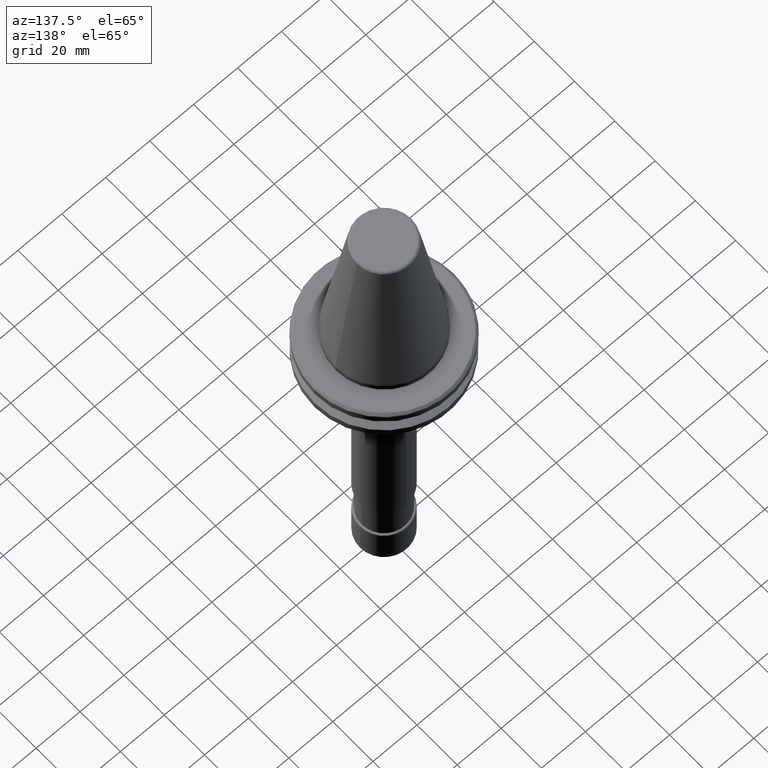
[diagram: clean part render]
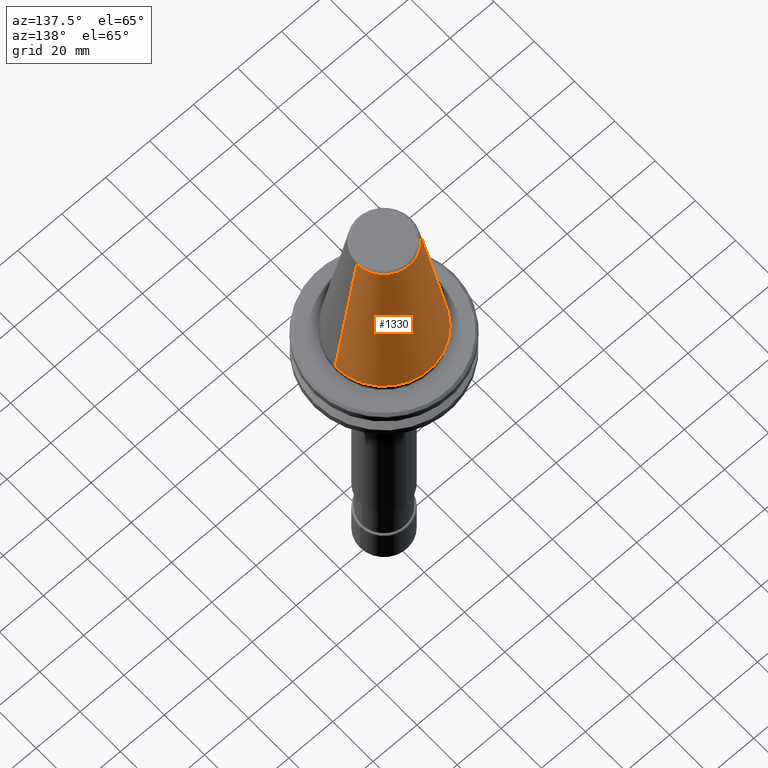
[diagram: same view with one face highlighted and labeled with its STEP entity id]
A machine part, auxiliary view. The second image highlights one B-rep face of the part: STEP entity #1330.
In plain terms, the highlighted conical surface has half-angle 8.297 deg.
Its self-contained STEP definition (entity closure, byte-faithful):
#3 = DIRECTION ( 'NONE',  ( 0.0000000000000000000, 0.0000000000000000000, 1.000000000000000000 ) ) ;
#174 = CARTESIAN_POINT ( 'NONE',  ( 0.0000000000000000000, 0.0000000000000000000, 67.54430822699997300 ) ) ;
#187 = CARTESIAN_POINT ( 'NONE',  ( 12.37469537600000200, 1.515463108264195400E-015, 67.54430822700000200 ) ) ;
#223 = DIRECTION ( 'NONE',  ( -0.0000000000000000000, -0.0000000000000000000, 1.000000000000000000 ) ) ;
#243 = CARTESIAN_POINT ( 'NONE',  ( -22.22499999999999400, 0.0000000000000000000, 0.0000000000000000000 ) ) ;
#471 = DIRECTION ( 'NONE',  ( 1.000000000000000000, 0.0000000000000000000, 0.0000000000000000000 ) ) ;
#587 = CONICAL_SURFACE ( 'NONE', #1605, 12.37469537600000200, 0.1448138465495948400 ) ;
#619 = AXIS2_PLACEMENT_3D ( 'NONE', #2927, #3, #471 ) ;
#620 = CARTESIAN_POINT ( 'NONE',  ( 12.37469537596690300, -3.807138672675623000E-009, 67.54430822700852800 ) ) ;
#807 = DIRECTION ( 'NONE',  ( -1.000000000000000000, 8.881784197001252300E-016, 2.242930009368895400E-015 ) ) ;
#976 = EDGE_CURVE ( 'NONE', #1320, #1703, #3320, .T. ) ;
#1198 = EDGE_CURVE ( 'NONE', #1606, #2431, #2304, .T. ) ;
#1320 = VERTEX_POINT ( 'NONE', #620 ) ;
#1328 = VECTOR ( 'NONE', #2164, 1000.000000000000100 ) ;
#1330 = ADVANCED_FACE ( 'NONE', ( #1883 ), #587, .T. ) ;
#1588 = CARTESIAN_POINT ( 'NONE',  ( 0.0000000000000000000, 0.0000000000000000000, 67.54430822700000200 ) ) ;
#1605 = AXIS2_PLACEMENT_3D ( 'NONE', #1588, #3047, #1620 ) ;
#1606 = VERTEX_POINT ( 'NONE', #2323 ) ;
#1620 = DIRECTION ( 'NONE',  ( -1.000000000000000000, 0.0000000000000000000, 0.0000000000000000000 ) ) ;
#1703 = VERTEX_POINT ( 'NONE', #3083 ) ;
#1756 = ORIENTED_EDGE ( 'NONE', *, *, #976, .T. ) ;
#1883 = FACE_OUTER_BOUND ( 'NONE', #2868, .T. ) ;
#1924 = CIRCLE ( 'NONE', #2517, 12.37469537600000200 ) ;
#1926 = ORIENTED_EDGE ( 'NONE', *, *, #1198, .F. ) ;
#2164 = DIRECTION ( 'NONE',  ( -0.1443082272694599900, 0.0000000000000000000, -0.9895327864918603800 ) ) ;
#2304 = LINE ( 'NONE', #3372, #1328 ) ;
#2323 = CARTESIAN_POINT ( 'NONE',  ( -12.37469537596881600, -1.111168798511305300E-009, 67.54430822699542600 ) ) ;
#2408 = EDGE_CURVE ( 'NONE', #1320, #1606, #1924, .T. ) ;
#2420 = DIRECTION ( 'NONE',  ( 0.1443082272694599900, 1.767266086161729800E-017, -0.9895327864918603800 ) ) ;
#2431 = VERTEX_POINT ( 'NONE', #243 ) ;
#2463 = VECTOR ( 'NONE', #2420, 1000.000000000000100 ) ;
#2517 = AXIS2_PLACEMENT_3D ( 'NONE', #174, #223, #807 ) ;
#2564 = EDGE_CURVE ( 'NONE', #1703, #2431, #3274, .T. ) ;
#2868 = EDGE_LOOP ( 'NONE', ( #2892, #1756, #2908, #1926 ) ) ;
#2892 = ORIENTED_EDGE ( 'NONE', *, *, #2408, .F. ) ;
#2908 = ORIENTED_EDGE ( 'NONE', *, *, #2564, .T. ) ;
#2927 = CARTESIAN_POINT ( 'NONE',  ( 0.0000000000000000000, 0.0000000000000000000, 0.0000000000000000000 ) ) ;
#3047 = DIRECTION ( 'NONE',  ( 0.0000000000000000000, 0.0000000000000000000, -1.000000000000000000 ) ) ;
#3083 = CARTESIAN_POINT ( 'NONE',  ( 22.22499999999999400, 2.721777511104992100E-015, 0.0000000000000000000 ) ) ;
#3274 = CIRCLE ( 'NONE', #619, 22.22499999999999800 ) ;
#3320 = LINE ( 'NONE', #187, #2463 ) ;
#3372 = CARTESIAN_POINT ( 'NONE',  ( -12.37469537600000200, 0.0000000000000000000, 67.54430822700000200 ) ) ;